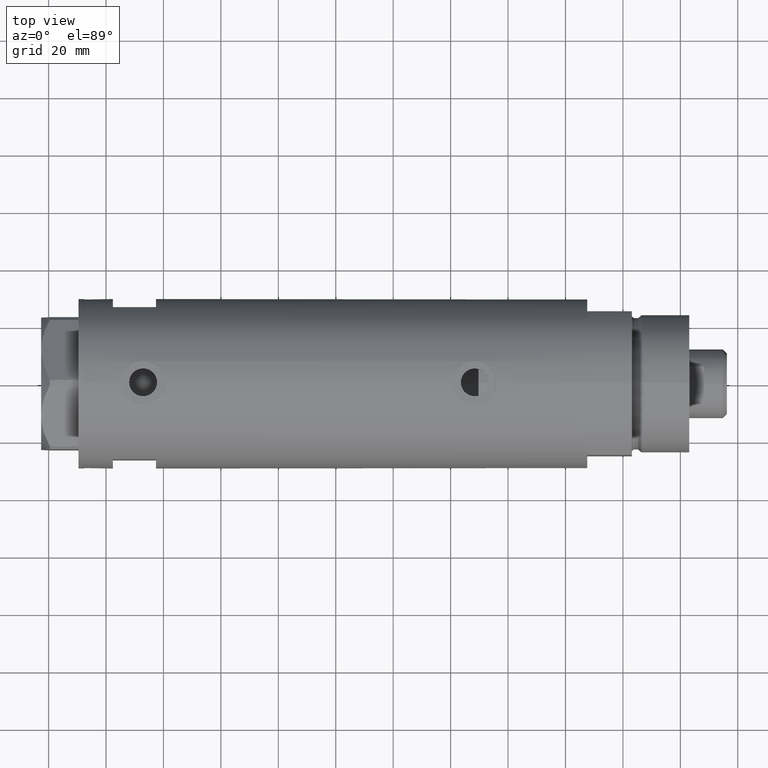
[diagram: clean part render]
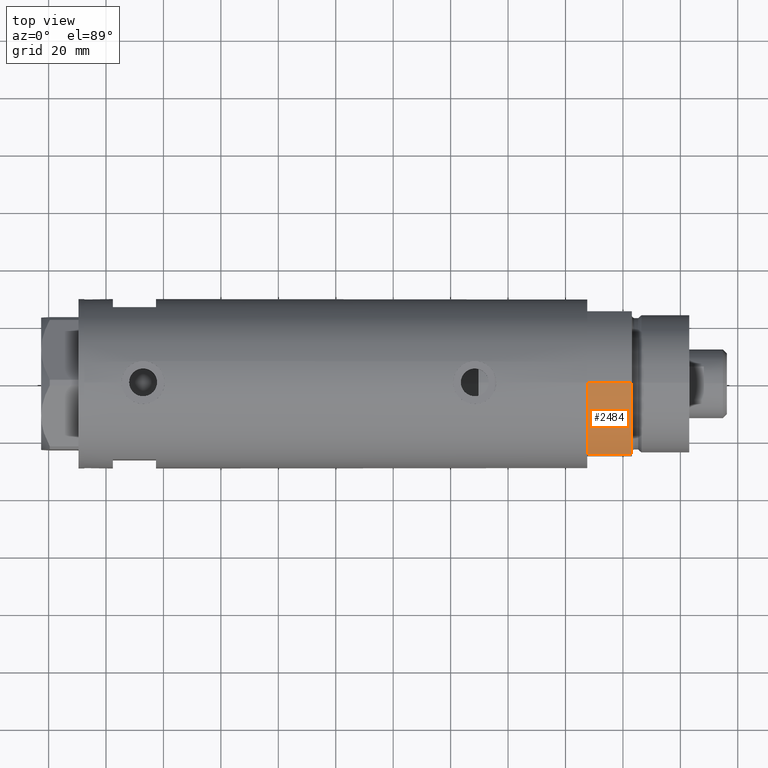
[diagram: same view with one face highlighted and labeled with its STEP entity id]
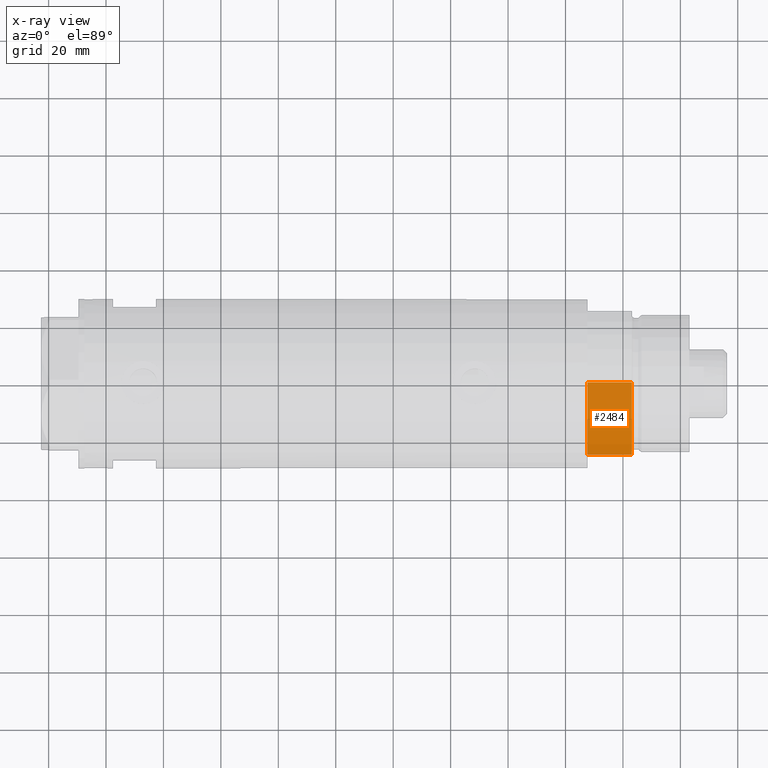
[diagram: x-ray of the same camera — body ghosted, the highlighted face saturated]
A machine part, top view. The second image highlights one B-rep face of the part: STEP entity #2484.
The next image is the same camera in x-ray: the body ghosted, the highlighted face saturated — about 0% of this face is hidden behind the body in this view.
In plain terms, the highlighted cylindrical surface (partial cylindrical patch) has radius 29.5 mm, axis along (-1, -0, 0).
Its self-contained STEP definition (entity closure, byte-faithful):
#217 = CIRCLE ( 'NONE', #2912, 29.50000000000000355 ) ;
#255 = CARTESIAN_POINT ( 'NONE',  ( 0.000000000000000000, 0.000000000000000000, 15.50000000000000000 ) ) ;
#522 = LINE ( 'NONE', #3491, #4316 ) ;
#581 = LINE ( 'NONE', #1282, #4553 ) ;
#582 = EDGE_LOOP ( 'NONE', ( #1238, #3861, #1405, #2837 ) ) ;
#713 = DIRECTION ( 'NONE',  ( -1.000000000000000000, 0.000000000000000000, 0.000000000000000000 ) ) ;
#890 = VERTEX_POINT ( 'NONE', #4622 ) ;
#1029 = FACE_OUTER_BOUND ( 'NONE', #582, .T. ) ;
#1238 = ORIENTED_EDGE ( 'NONE', *, *, #4395, .F. ) ;
#1282 = CARTESIAN_POINT ( 'NONE',  ( -29.50000000000000355, 0.000000000000000000, 15.50000000000000000 ) ) ;
#1358 = VERTEX_POINT ( 'NONE', #2205 ) ;
#1382 = AXIS2_PLACEMENT_3D ( 'NONE', #255, #4705, #1392 ) ;
#1392 = DIRECTION ( 'NONE',  ( 1.000000000000000000, 0.000000000000000000, 0.000000000000000000 ) ) ;
#1405 = ORIENTED_EDGE ( 'NONE', *, *, #2286, .T. ) ;
#1782 = CARTESIAN_POINT ( 'NONE',  ( 0.000000000000000000, 0.000000000000000000, 15.50000000000000000 ) ) ;
#1950 = DIRECTION ( 'NONE',  ( 0.000000000000000000, 0.000000000000000000, 1.000000000000000000 ) ) ;
#1998 = DIRECTION ( 'NONE',  ( -0.000000000000000000, -0.000000000000000000, 1.000000000000000000 ) ) ;
#2055 = DIRECTION ( 'NONE',  ( -0.000000000000000000, -0.000000000000000000, -1.000000000000000000 ) ) ;
#2205 = CARTESIAN_POINT ( 'NONE',  ( -29.50000000000000355, 0.000000000000000000, 0.000000000000000000 ) ) ;
#2286 = EDGE_CURVE ( 'NONE', #1358, #890, #217, .T. ) ;
#2484 = ADVANCED_FACE ( 'NONE', ( #1029 ), #2553, .T. ) ;
#2553 = CYLINDRICAL_SURFACE ( 'NONE', #4536, 29.50000000000000355 ) ;
#2837 = ORIENTED_EDGE ( 'NONE', *, *, #3685, .T. ) ;
#2912 = AXIS2_PLACEMENT_3D ( 'NONE', #3466, #1950, #3438 ) ;
#3438 = DIRECTION ( 'NONE',  ( 1.000000000000000000, 0.000000000000000000, 0.000000000000000000 ) ) ;
#3466 = CARTESIAN_POINT ( 'NONE',  ( 0.000000000000000000, 0.000000000000000000, 0.000000000000000000 ) ) ;
#3485 = CIRCLE ( 'NONE', #1382, 29.50000000000000355 ) ;
#3491 = CARTESIAN_POINT ( 'NONE',  ( -15.66045976336583401, -25.00000000000000000, 0.000000000000000000 ) ) ;
#3685 = EDGE_CURVE ( 'NONE', #890, #4266, #522, .T. ) ;
#3788 = VERTEX_POINT ( 'NONE', #3827 ) ;
#3827 = CARTESIAN_POINT ( 'NONE',  ( -29.50000000000000355, 0.000000000000000000, 15.50000000000000000 ) ) ;
#3861 = ORIENTED_EDGE ( 'NONE', *, *, #4575, .T. ) ;
#4032 = DIRECTION ( 'NONE',  ( -0.000000000000000000, -0.000000000000000000, -1.000000000000000000 ) ) ;
#4064 = CARTESIAN_POINT ( 'NONE',  ( -15.66045976336583045, -25.00000000000000000, 15.50000000000000000 ) ) ;
#4266 = VERTEX_POINT ( 'NONE', #4064 ) ;
#4316 = VECTOR ( 'NONE', #1998, 1000.000000000000000 ) ;
#4395 = EDGE_CURVE ( 'NONE', #3788, #4266, #3485, .T. ) ;
#4536 = AXIS2_PLACEMENT_3D ( 'NONE', #1782, #4032, #713 ) ;
#4553 = VECTOR ( 'NONE', #2055, 1000.000000000000000 ) ;
#4575 = EDGE_CURVE ( 'NONE', #3788, #1358, #581, .T. ) ;
#4622 = CARTESIAN_POINT ( 'NONE',  ( -15.66045976336582690, -25.00000000000000000, 0.000000000000000000 ) ) ;
#4705 = DIRECTION ( 'NONE',  ( 0.000000000000000000, 0.000000000000000000, 1.000000000000000000 ) ) ;